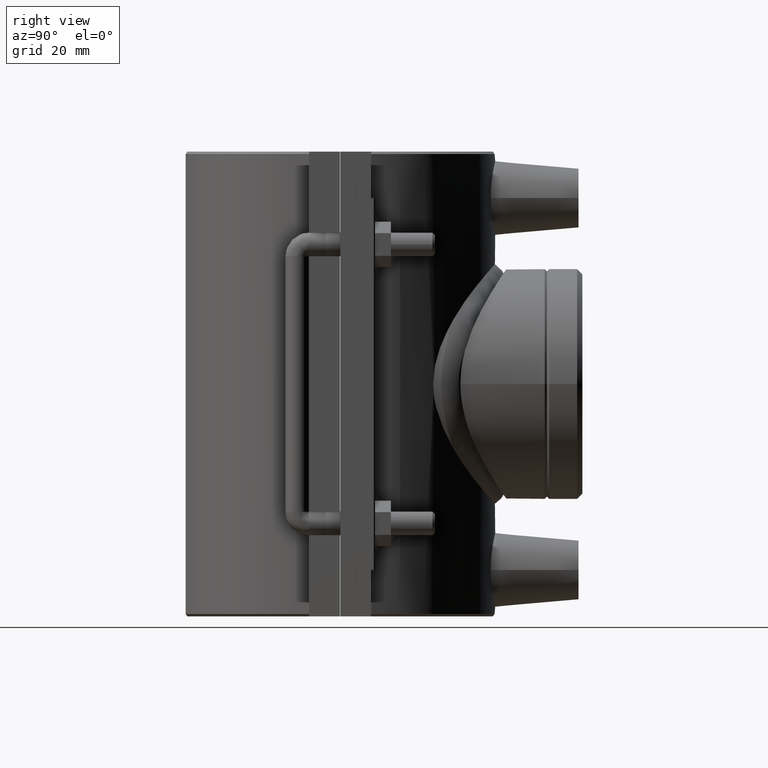
[diagram: clean part render]
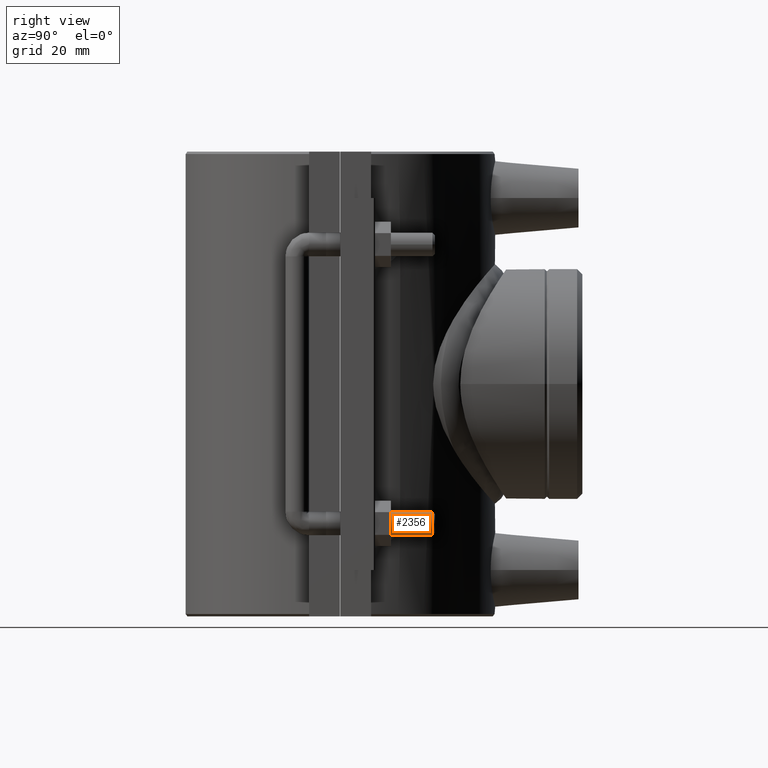
[diagram: same view with one face highlighted and labeled with its STEP entity id]
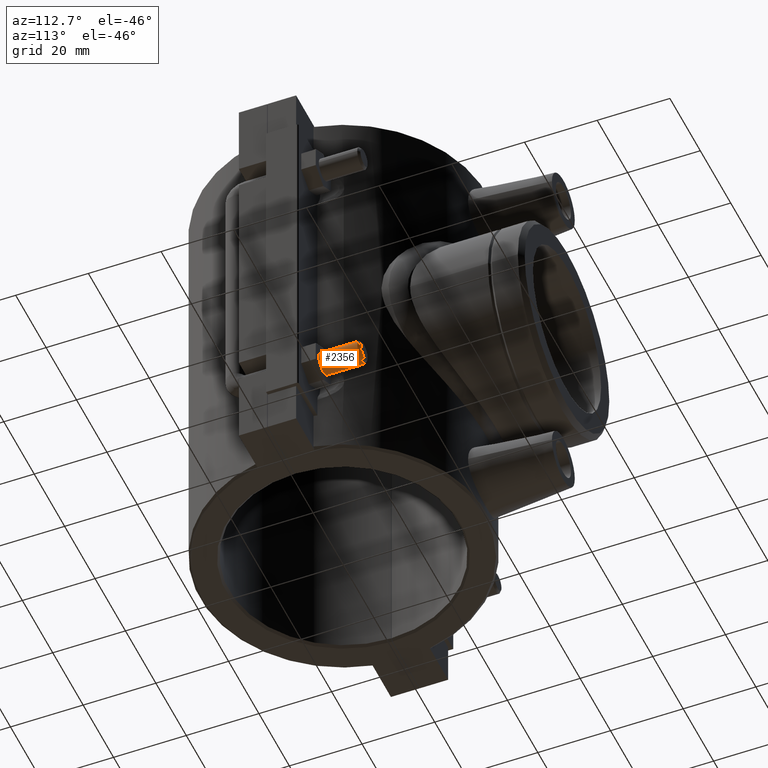
[diagram: same view with one face highlighted and labeled with its STEP entity id]
A machine part, right view. The second image highlights one B-rep face of the part: STEP entity #2356.
A second angle (auxiliary view) of the same face is appended — the face is thin or edge-on in the first view.
In plain terms, the highlighted cylindrical surface (bore or boss wall) has radius 3 mm, axis along (0, 1, 0).
Its self-contained STEP definition (entity closure, byte-faithful):
#85=CYLINDRICAL_SURFACE('',#2561,3.);
#134=FACE_BOUND('',#478,.T.);
#292=FACE_OUTER_BOUND('',#477,.T.);
#477=EDGE_LOOP('',(#2038));
#478=EDGE_LOOP('',(#2039));
#929=CIRCLE('',#2501,3.);
#956=CIRCLE('',#2559,3.);
#1124=VERTEX_POINT('',#4139);
#1167=VERTEX_POINT('',#4666);
#1405=EDGE_CURVE('',#1124,#1124,#929,.T.);
#1470=EDGE_CURVE('',#1167,#1167,#956,.T.);
#2038=ORIENTED_EDGE('',*,*,#1405,.T.);
#2039=ORIENTED_EDGE('',*,*,#1470,.F.);
#2356=ADVANCED_FACE('',(#292,#134),#85,.T.);
#2501=AXIS2_PLACEMENT_3D('',#4140,#2980,#2981);
#2559=AXIS2_PLACEMENT_3D('',#4667,#3110,#3111);
#2561=AXIS2_PLACEMENT_3D('',#4670,#3114,#3115);
#2980=DIRECTION('center_axis',(0.,1.,0.));
#2981=DIRECTION('ref_axis',(-1.,0.,0.));
#3110=DIRECTION('center_axis',(0.,1.,2.9861597890357E-15));
#3111=DIRECTION('ref_axis',(-1.,0.,0.));
#3114=DIRECTION('center_axis',(0.,1.,2.78147372513192E-16));
#3115=DIRECTION('ref_axis',(-1.,0.,0.));
#4139=CARTESIAN_POINT('',(44.,12.875,-38.4));
#4140=CARTESIAN_POINT('Origin',(44.,12.875,-35.4));
#4666=CARTESIAN_POINT('',(47.,23.4569363571555,-35.4));
#4667=CARTESIAN_POINT('Origin',(44.,23.4569363571555,-35.4));
#4670=CARTESIAN_POINT('Origin',(44.,-7.87500000000001,-35.4));